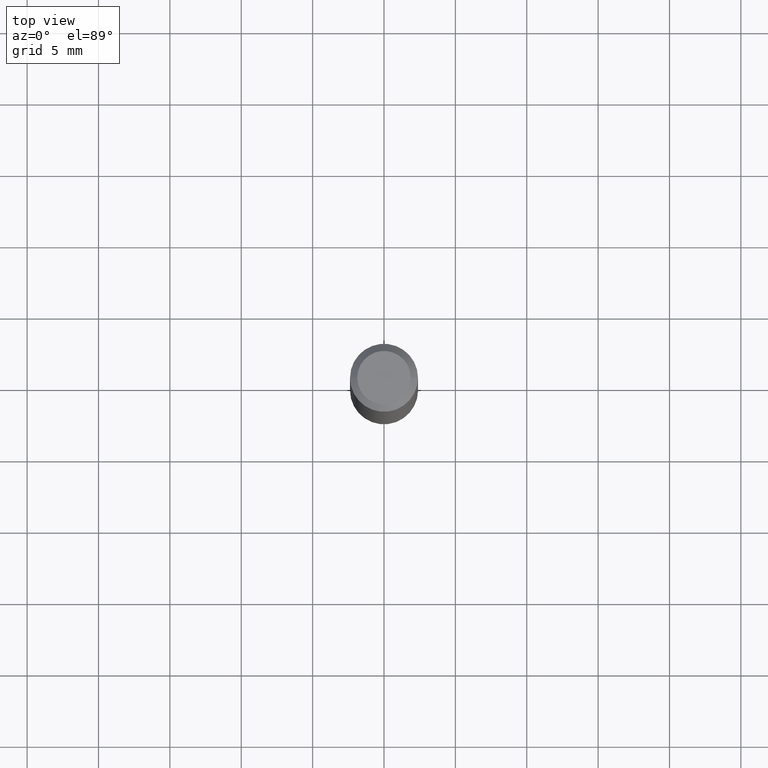
[diagram: clean part render]
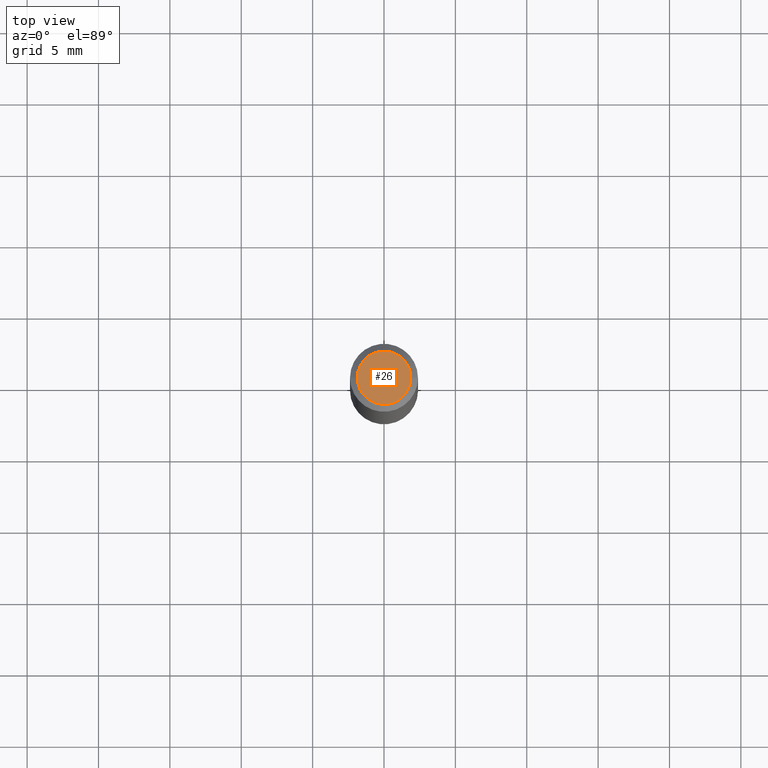
[diagram: same view with one face highlighted and labeled with its STEP entity id]
A machine part, top view. The second image highlights one B-rep face of the part: STEP entity #26.
In plain terms, the highlighted planar face has unit normal (0, -0, -1).
Its self-contained STEP definition (entity closure, byte-faithful):
#6 = AXIS2_PLACEMENT_3D ( 'NONE', #323, #321, #291 ) ;
#26 = ADVANCED_FACE ( 'NONE', ( #245 ), #219, .F. ) ;
#35 = AXIS2_PLACEMENT_3D ( 'NONE', #328, #166, #54 ) ;
#54 = DIRECTION ( 'NONE',  ( -1.000000000000000000, 6.982962677686265922E-15, -4.876176775795935793E-29 ) ) ;
#70 = CARTESIAN_POINT ( 'NONE',  ( 0.07374999999999982958, -6.094815207017961198E-16, 4.268512490104342487E-18 ) ) ;
#115 = EDGE_CURVE ( 'NONE', #124, #345, #286, .T. ) ;
#124 = VERTEX_POINT ( 'NONE', #70 ) ;
#166 = DIRECTION ( 'NONE',  ( 2.438088387897960049E-29, -3.491481338843145188E-15, -1.000000000000000000 ) ) ;
#207 = ORIENTED_EDGE ( 'NONE', *, *, #115, .T. ) ;
#214 = CARTESIAN_POINT ( 'NONE',  ( -0.07374999999999982958, 5.499083108677921624E-16, 4.268512490096688071E-18 ) ) ;
#216 = CARTESIAN_POINT ( 'NONE',  ( -1.043851414335219820E-46, 1.490343170380447200E-32, 4.268512490100411279E-18 ) ) ;
#219 = PLANE ( 'NONE',  #35 ) ;
#224 = ORIENTED_EDGE ( 'NONE', *, *, #237, .T. ) ;
#229 = CIRCLE ( 'NONE', #6, 0.07374999999999982958 ) ;
#237 = EDGE_CURVE ( 'NONE', #345, #124, #229, .T. ) ;
#245 = FACE_OUTER_BOUND ( 'NONE', #359, .T. ) ;
#273 = AXIS2_PLACEMENT_3D ( 'NONE', #216, #325, #352 ) ;
#286 = CIRCLE ( 'NONE', #273, 0.07374999999999982958 ) ;
#291 = DIRECTION ( 'NONE',  ( 1.000000000000000000, -6.982962677686266711E-15, 4.875869617646596737E-29 ) ) ;
#321 = DIRECTION ( 'NONE',  ( -2.445468806185136597E-29, 3.491481338843145583E-15, 1.000000000000000000 ) ) ;
#323 = CARTESIAN_POINT ( 'NONE',  ( -1.043851414335219820E-46, 1.490343170380447200E-32, 4.268512490100411279E-18 ) ) ;
#325 = DIRECTION ( 'NONE',  ( -2.445468806185136597E-29, 3.491481338843145583E-15, 1.000000000000000000 ) ) ;
#328 = CARTESIAN_POINT ( 'NONE',  ( 5.149934974793609077E-16, 0.07374999999999982958, -2.553624924946311773E-16 ) ) ;
#345 = VERTEX_POINT ( 'NONE', #214 ) ;
#352 = DIRECTION ( 'NONE',  ( 1.000000000000000000, -6.982962677686266711E-15, 4.875869617646596737E-29 ) ) ;
#359 = EDGE_LOOP ( 'NONE', ( #224, #207 ) ) ;